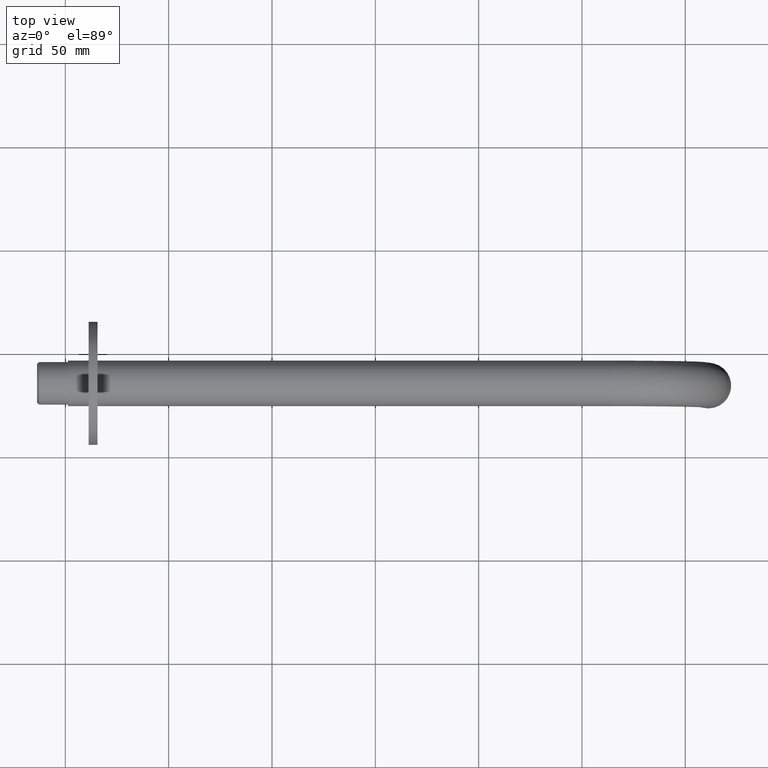
[diagram: clean part render]
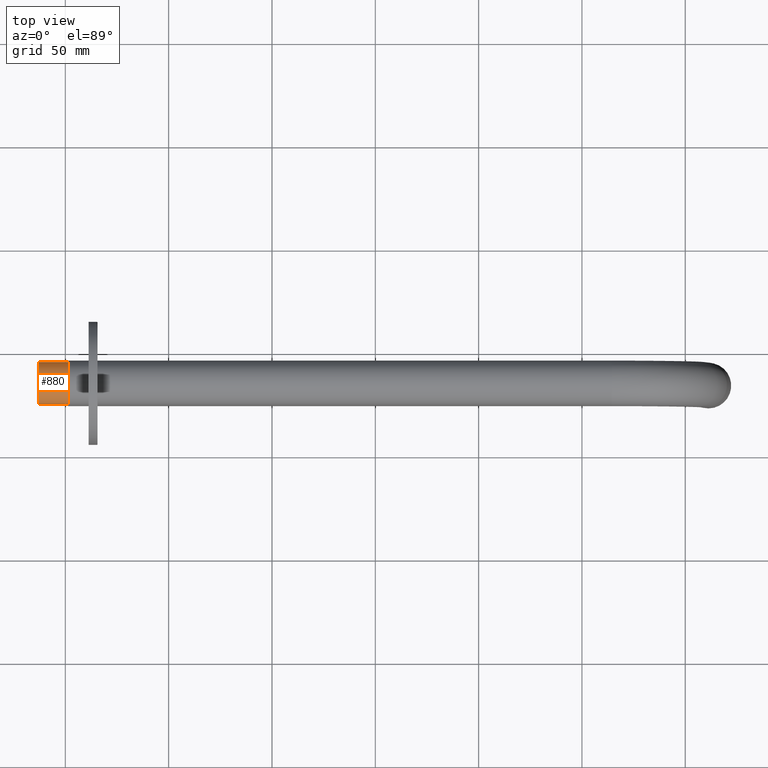
[diagram: same view with one face highlighted and labeled with its STEP entity id]
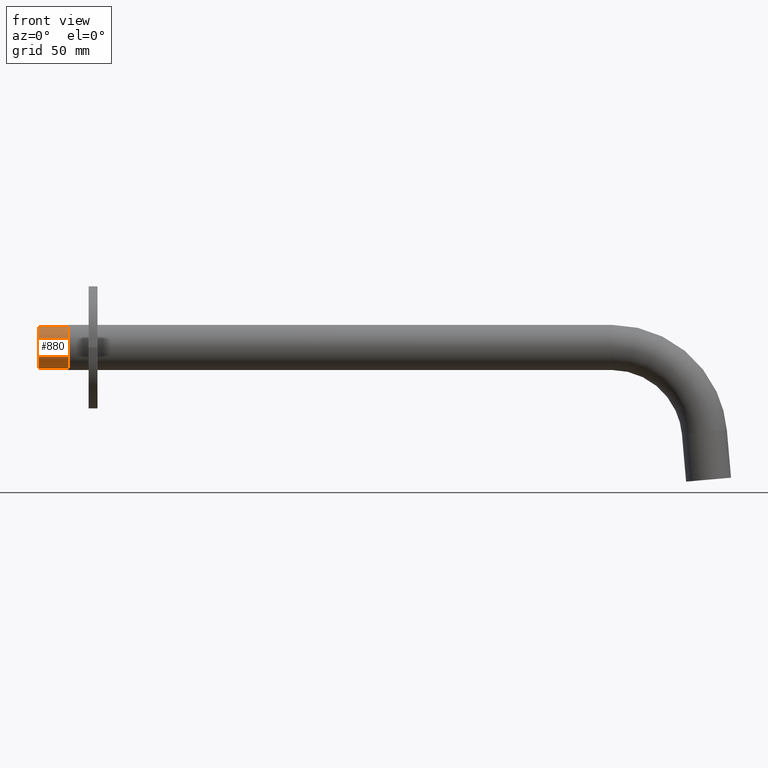
[diagram: same view with one face highlighted and labeled with its STEP entity id]
A machine part, top view. The second image highlights one B-rep face of the part: STEP entity #880.
A second angle (front view) of the same face is appended — the face is thin or edge-on in the first view.
In plain terms, the highlighted cylindrical surface (bore or boss wall) has radius 10.3 mm, axis along (-1, 0, 0).
Its self-contained STEP definition (entity closure, byte-faithful):
#144=CYLINDRICAL_SURFACE('',#953,10.3);
#171=VERTEX_POINT('',#1088);
#172=VERTEX_POINT('',#1091);
#258=CIRCLE('',#952,10.3);
#259=CIRCLE('',#954,10.3);
#321=EDGE_CURVE('',#171,#171,#258,.T.);
#322=EDGE_CURVE('',#172,#172,#259,.T.);
#427=ORIENTED_EDGE('',*,*,#322,.F.);
#428=ORIENTED_EDGE('',*,*,#321,.F.);
#637=EDGE_LOOP('',(#427));
#638=EDGE_LOOP('',(#428));
#759=FACE_BOUND('',#637,.T.);
#760=FACE_BOUND('',#638,.T.);
#880=ADVANCED_FACE('',(#759,#760),#144,.T.);
#952=AXIS2_PLACEMENT_3D('',#1087,#1351,#1352);
#953=AXIS2_PLACEMENT_3D('',#1089,#1353,#1354);
#954=AXIS2_PLACEMENT_3D('',#1090,#1355,#1356);
#1087=CARTESIAN_POINT('',(-112.726174439497,-15.2,45.5441663368121));
#1088=CARTESIAN_POINT('',(-112.726174439497,-4.89999999999981,45.5441663368121));
#1089=CARTESIAN_POINT('',(-98.7261744394973,-15.2,45.5441663368121));
#1090=CARTESIAN_POINT('',(-98.7261744394973,-15.2,45.5441663368121));
#1091=CARTESIAN_POINT('',(-98.7261744394973,-4.89999999999981,45.5441663368121));
#1351=DIRECTION('',(-1.,0.,0.));
#1352=DIRECTION('',(0.,-10.3,0.));
#1353=DIRECTION('',(-1.,0.,0.));
#1354=DIRECTION('',(0.,10.3,0.));
#1355=DIRECTION('',(1.,0.,0.));
#1356=DIRECTION('',(0.,10.3,0.));